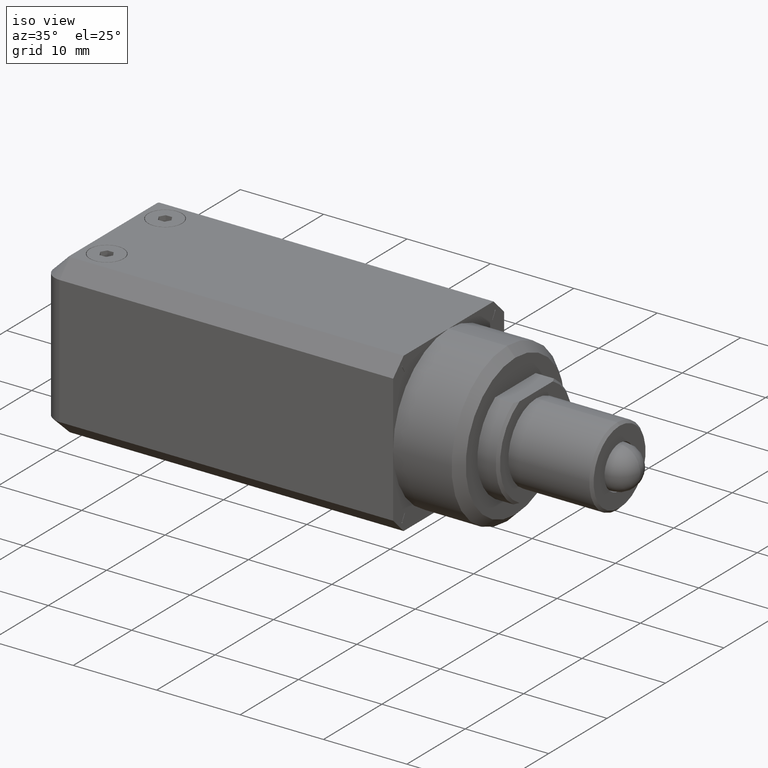
[diagram: clean part render]
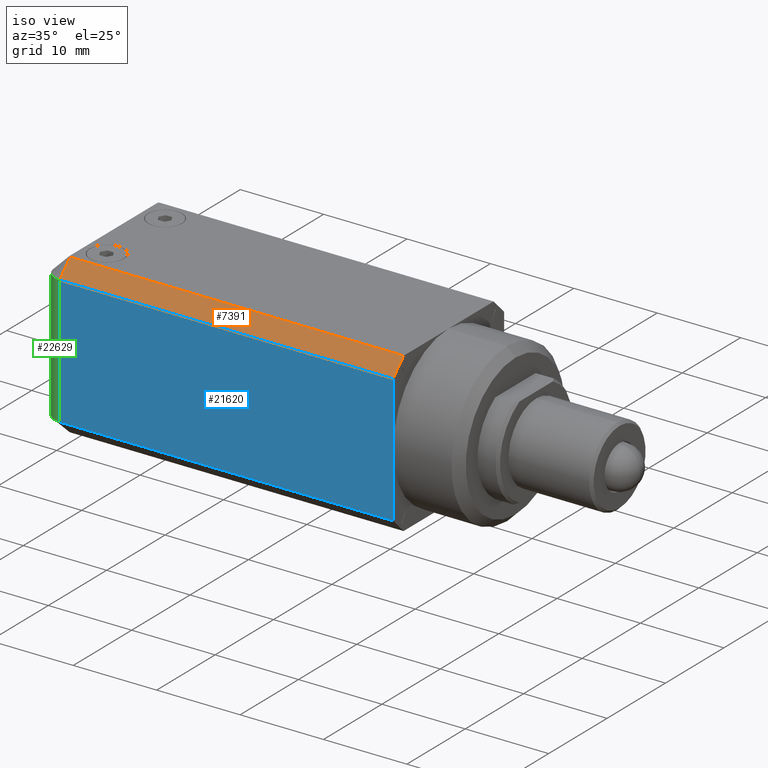
[diagram: same view with three faces highlighted in distinct colors, each labeled with its STEP entity id]
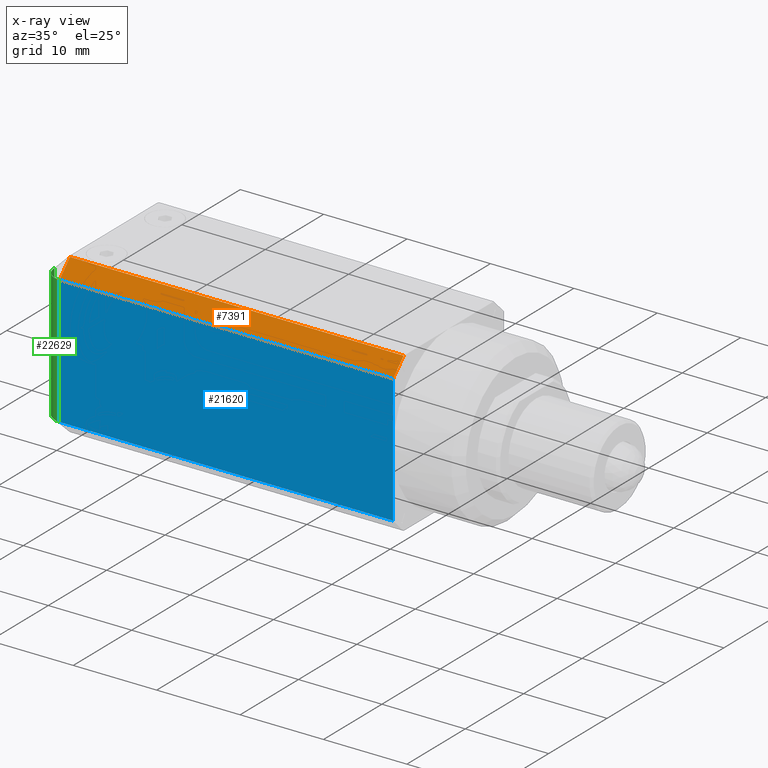
[diagram: x-ray of the same camera — body ghosted, the three highlighted faces saturated]
A machine part, iso view with three faces highlighted in distinct colors.
The next image is the same camera in x-ray (body ghosted, the three faces saturated) — at least one of them is partly hidden behind the body in this view.
Their STEP definitions:

[orange] entity #7391 — the highlighted planar face has unit normal (0, -0.7071, 0.7071).
#218 = EDGE_LOOP ( 'NONE', ( #21649, #7169, #18740, #7579 ) ) ;
#279 = CARTESIAN_POINT ( 'NONE',  ( -20.00000000000000000, -8.599999999999999645, 8.599999999999999645 ) ) ;
#2203 = VERTEX_POINT ( 'NONE', #9249 ) ;
#2452 = CARTESIAN_POINT ( 'NONE',  ( -42.00000000000000000, -7.699999999998635936, 9.500000000000000000 ) ) ;
#3154 = EDGE_CURVE ( 'NONE', #5618, #18971, #18400, .T. ) ;
#3297 = LINE ( 'NONE', #12619, #12254 ) ;
#4485 = LINE ( 'NONE', #2452, #17975 ) ;
#5618 = VERTEX_POINT ( 'NONE', #15149 ) ;
#5995 = VERTEX_POINT ( 'NONE', #21403 ) ;
#6428 = PLANE ( 'NONE',  #24578 ) ;
#7169 = ORIENTED_EDGE ( 'NONE', *, *, #12630, .T. ) ;
#7391 = ADVANCED_FACE ( 'NONE', ( #8185 ), #6428, .T. ) ;
#7459 = CARTESIAN_POINT ( 'NONE',  ( -40.00000000000001421, -8.599999999999999645, 8.599999999999999645 ) ) ;
#7579 = ORIENTED_EDGE ( 'NONE', *, *, #20201, .T. ) ;
#7939 = DIRECTION ( 'NONE',  ( 0.000000000000000000, -0.7071067811865475727, 0.7071067811865475727 ) ) ;
#8185 = FACE_OUTER_BOUND ( 'NONE', #218, .T. ) ;
#9249 = CARTESIAN_POINT ( 'NONE',  ( 3.469446951953614189E-15, -7.699999999998863309, 9.500000000000229150 ) ) ;
#9343 = DIRECTION ( 'NONE',  ( 0.000000000000000000, -0.7071067811865474617, -0.7071067811865474617 ) ) ;
#10170 = DIRECTION ( 'NONE',  ( 1.000000000000000000, 0.000000000000000000, -0.000000000000000000 ) ) ;
#10725 = DIRECTION ( 'NONE',  ( -0.000000000000000000, 0.7071067811865474617, 0.7071067811865474617 ) ) ;
#12254 = VECTOR ( 'NONE', #10725, 1000.000000000000114 ) ;
#12619 = CARTESIAN_POINT ( 'NONE',  ( 1.040834085586084257E-14, -8.599999999999999645, 8.599999999999999645 ) ) ;
#12630 = EDGE_CURVE ( 'NONE', #5995, #5618, #22813, .T. ) ;
#13909 = CARTESIAN_POINT ( 'NONE',  ( -20.00000000000000000, -9.499999999950626162, 7.700000000049374016 ) ) ;
#14467 = CARTESIAN_POINT ( 'NONE',  ( 9.251858538542970644E-15, -9.499999999967084108, 7.700000000049373128 ) ) ;
#15149 = CARTESIAN_POINT ( 'NONE',  ( -40.00000000000000711, -9.499999999940182960, 7.700000000063710104 ) ) ;
#17975 = VECTOR ( 'NONE', #10170, 1000.000000000000000 ) ;
#18400 = LINE ( 'NONE', #13909, #19079 ) ;
#18740 = ORIENTED_EDGE ( 'NONE', *, *, #3154, .T. ) ;
#18971 = VERTEX_POINT ( 'NONE', #14467 ) ;
#19079 = VECTOR ( 'NONE', #21692, 1000.000000000000000 ) ;
#20201 = EDGE_CURVE ( 'NONE', #18971, #2203, #3297, .T. ) ;
#21403 = CARTESIAN_POINT ( 'NONE',  ( -40.00000000000001421, -7.699999999998124345, 9.500000000001534772 ) ) ;
#21649 = ORIENTED_EDGE ( 'NONE', *, *, #24255, .F. ) ;
#21657 = DIRECTION ( 'NONE',  ( 0.000000000000000000, -0.7071067811865474617, -0.7071067811865474617 ) ) ;
#21692 = DIRECTION ( 'NONE',  ( 1.000000000000000000, 0.000000000000000000, 0.000000000000000000 ) ) ;
#22813 = LINE ( 'NONE', #7459, #24088 ) ;
#24088 = VECTOR ( 'NONE', #9343, 1000.000000000000114 ) ;
#24255 = EDGE_CURVE ( 'NONE', #5995, #2203, #4485, .T. ) ;
#24578 = AXIS2_PLACEMENT_3D ( 'NONE', #279, #7939, #21657 ) ;

[blue] entity #21620 — the highlighted planar face has unit normal (0, -1, 0).
#27 = EDGE_CURVE ( 'NONE', #5618, #15024, #772, .T. ) ;
#772 = LINE ( 'NONE', #19772, #11386 ) ;
#2651 = ORIENTED_EDGE ( 'NONE', *, *, #10877, .T. ) ;
#3154 = EDGE_CURVE ( 'NONE', #5618, #18971, #18400, .T. ) ;
#3605 = DIRECTION ( 'NONE',  ( -1.000000000000000000, -0.000000000000000000, -0.000000000000000000 ) ) ;
#3686 = CARTESIAN_POINT ( 'NONE',  ( 0.000000000000000000, -9.500000000000000000, -8.500000000000000000 ) ) ;
#4137 = VECTOR ( 'NONE', #3605, 1000.000000000000000 ) ;
#4731 = EDGE_CURVE ( 'NONE', #17478, #8803, #5572, .T. ) ;
#5572 = LINE ( 'NONE', #3686, #17268 ) ;
#5618 = VERTEX_POINT ( 'NONE', #15149 ) ;
#5938 = CARTESIAN_POINT ( 'NONE',  ( 0.000000000000000000, -9.500000000000000000, -8.500000000000000000 ) ) ;
#7349 = LINE ( 'NONE', #5938, #23374 ) ;
#7596 = CARTESIAN_POINT ( 'NONE',  ( 1.040834085586084257E-14, -9.500000000000000000, -7.700000000000001066 ) ) ;
#8803 = VERTEX_POINT ( 'NONE', #19459 ) ;
#8886 = EDGE_LOOP ( 'NONE', ( #23891, #19875, #20550, #2651, #20190 ) ) ;
#10877 = EDGE_CURVE ( 'NONE', #8803, #18971, #7349, .T. ) ;
#11065 = AXIS2_PLACEMENT_3D ( 'NONE', #12811, #18076, #22379 ) ;
#11248 = DIRECTION ( 'NONE',  ( -0.000000000000000000, 0.000000000000000000, 1.000000000000000000 ) ) ;
#11386 = VECTOR ( 'NONE', #14230, 1000.000000000000000 ) ;
#12052 = EDGE_CURVE ( 'NONE', #17478, #15024, #18556, .T. ) ;
#12811 = CARTESIAN_POINT ( 'NONE',  ( -42.00000000000000000, -9.500000000000000000, -8.500000000000000000 ) ) ;
#13159 = CARTESIAN_POINT ( 'NONE',  ( -20.00000000000000000, -9.500000000000000000, -7.700000000000000178 ) ) ;
#13909 = CARTESIAN_POINT ( 'NONE',  ( -20.00000000000000000, -9.499999999950626162, 7.700000000049374016 ) ) ;
#14230 = DIRECTION ( 'NONE',  ( 0.000000000000000000, -0.000000000000000000, -1.000000000000000000 ) ) ;
#14449 = PLANE ( 'NONE',  #11065 ) ;
#14467 = CARTESIAN_POINT ( 'NONE',  ( 9.251858538542970644E-15, -9.499999999967084108, 7.700000000049373128 ) ) ;
#15024 = VERTEX_POINT ( 'NONE', #18587 ) ;
#15149 = CARTESIAN_POINT ( 'NONE',  ( -40.00000000000000711, -9.499999999940182960, 7.700000000063710104 ) ) ;
#17268 = VECTOR ( 'NONE', #11248, 1000.000000000000000 ) ;
#17478 = VERTEX_POINT ( 'NONE', #7596 ) ;
#18076 = DIRECTION ( 'NONE',  ( 0.000000000000000000, -1.000000000000000000, 0.000000000000000000 ) ) ;
#18188 = FACE_OUTER_BOUND ( 'NONE', #8886, .T. ) ;
#18400 = LINE ( 'NONE', #13909, #19079 ) ;
#18556 = LINE ( 'NONE', #13159, #4137 ) ;
#18587 = CARTESIAN_POINT ( 'NONE',  ( -39.99999999665313766, -9.499999999979081622, -7.700000000050709836 ) ) ;
#18971 = VERTEX_POINT ( 'NONE', #14467 ) ;
#19079 = VECTOR ( 'NONE', #21692, 1000.000000000000000 ) ;
#19459 = CARTESIAN_POINT ( 'NONE',  ( 0.000000000000000000, -9.500000000000000000, 0.000000000000000000 ) ) ;
#19772 = CARTESIAN_POINT ( 'NONE',  ( -40.00000000000000000, -9.500000000000000000, -8.500000000000000000 ) ) ;
#19875 = ORIENTED_EDGE ( 'NONE', *, *, #12052, .F. ) ;
#20190 = ORIENTED_EDGE ( 'NONE', *, *, #3154, .F. ) ;
#20550 = ORIENTED_EDGE ( 'NONE', *, *, #4731, .T. ) ;
#21620 = ADVANCED_FACE ( 'NONE', ( #18188 ), #14449, .T. ) ;
#21692 = DIRECTION ( 'NONE',  ( 1.000000000000000000, 0.000000000000000000, 0.000000000000000000 ) ) ;
#22379 = DIRECTION ( 'NONE',  ( 0.000000000000000000, -0.000000000000000000, -1.000000000000000000 ) ) ;
#23224 = DIRECTION ( 'NONE',  ( -0.000000000000000000, 0.000000000000000000, 1.000000000000000000 ) ) ;
#23374 = VECTOR ( 'NONE', #23224, 1000.000000000000000 ) ;
#23891 = ORIENTED_EDGE ( 'NONE', *, *, #27, .T. ) ;

[green] entity #22629 — the highlighted cylindrical surface (edge-blend (fillet) strip) has radius 2 mm, axis along (0, 0, -1).
#27 = EDGE_CURVE ( 'NONE', #5618, #15024, #772, .T. ) ;
#318 = EDGE_CURVE ( 'NONE', #14041, #5618, #19780, .T. ) ;
#772 = LINE ( 'NONE', #19772, #11386 ) ;
#1839 = CARTESIAN_POINT ( 'NONE',  ( -40.00000000000000000, -7.500000000000000000, -7.700000000113504939 ) ) ;
#2384 = CIRCLE ( 'NONE', #4005, 1.999999999916325599 ) ;
#2398 = CARTESIAN_POINT ( 'NONE',  ( -41.99999999994324895, -7.499999998444752514, 7.700000000113504939 ) ) ;
#3934 = ORIENTED_EDGE ( 'NONE', *, *, #10513, .T. ) ;
#4005 = AXIS2_PLACEMENT_3D ( 'NONE', #1839, #9537, #17170 ) ;
#4468 = LINE ( 'NONE', #18009, #21715 ) ;
#4536 = CARTESIAN_POINT ( 'NONE',  ( -41.99999999995348077, -7.500000000000005329, -7.700000000069948669 ) ) ;
#4752 = DIRECTION ( 'NONE',  ( -1.000000000000000000, 0.000000000000000000, 0.000000000000000000 ) ) ;
#5544 = ORIENTED_EDGE ( 'NONE', *, *, #27, .F. ) ;
#5618 = VERTEX_POINT ( 'NONE', #15149 ) ;
#5660 = DIRECTION ( 'NONE',  ( -2.168404345276199184E-16, -0.000000000000000000, 1.000000000000000000 ) ) ;
#7200 = EDGE_CURVE ( 'NONE', #15024, #7386, #2384, .T. ) ;
#7386 = VERTEX_POINT ( 'NONE', #4536 ) ;
#7915 = EDGE_LOOP ( 'NONE', ( #5544, #24726, #3934, #18870 ) ) ;
#8534 = CARTESIAN_POINT ( 'NONE',  ( -40.00000000000000000, -7.500000000000000000, 30.66120000000000800 ) ) ;
#9537 = DIRECTION ( 'NONE',  ( -0.000000000000000000, -0.000000000000000000, -1.000000000000000000 ) ) ;
#10513 = EDGE_CURVE ( 'NONE', #14041, #7386, #4468, .T. ) ;
#11386 = VECTOR ( 'NONE', #14230, 1000.000000000000000 ) ;
#13348 = DIRECTION ( 'NONE',  ( -1.000000000000000000, 0.000000000000000000, 0.000000000000000000 ) ) ;
#14041 = VERTEX_POINT ( 'NONE', #2398 ) ;
#14230 = DIRECTION ( 'NONE',  ( 0.000000000000000000, -0.000000000000000000, -1.000000000000000000 ) ) ;
#14314 = CYLINDRICAL_SURFACE ( 'NONE', #17116, 2.000000000000001776 ) ;
#15024 = VERTEX_POINT ( 'NONE', #18587 ) ;
#15149 = CARTESIAN_POINT ( 'NONE',  ( -40.00000000000000711, -9.499999999940182960, 7.700000000063710104 ) ) ;
#16542 = DIRECTION ( 'NONE',  ( 0.000000000000000000, 0.000000000000000000, -1.000000000000000000 ) ) ;
#17116 = AXIS2_PLACEMENT_3D ( 'NONE', #8534, #16542, #4752 ) ;
#17170 = DIRECTION ( 'NONE',  ( -1.000000000000000000, -8.673617380246915433E-16, 0.000000000000000000 ) ) ;
#17350 = CARTESIAN_POINT ( 'NONE',  ( -40.00000000000000000, -7.500000000000000000, 7.700000000113504939 ) ) ;
#18009 = CARTESIAN_POINT ( 'NONE',  ( -42.00000000000000000, -7.500000000000000000, 30.66120000000000800 ) ) ;
#18587 = CARTESIAN_POINT ( 'NONE',  ( -39.99999999665313766, -9.499999999979081622, -7.700000000050709836 ) ) ;
#18870 = ORIENTED_EDGE ( 'NONE', *, *, #7200, .F. ) ;
#19772 = CARTESIAN_POINT ( 'NONE',  ( -40.00000000000000000, -9.500000000000000000, -8.500000000000000000 ) ) ;
#19780 = CIRCLE ( 'NONE', #20166, 1.999999999859482180 ) ;
#20166 = AXIS2_PLACEMENT_3D ( 'NONE', #17350, #5660, #13348 ) ;
#20458 = FACE_OUTER_BOUND ( 'NONE', #7915, .T. ) ;
#21715 = VECTOR ( 'NONE', #23488, 1000.000000000000000 ) ;
#22629 = ADVANCED_FACE ( 'NONE', ( #20458 ), #14314, .T. ) ;
#23488 = DIRECTION ( 'NONE',  ( 0.000000000000000000, 0.000000000000000000, -1.000000000000000000 ) ) ;
#24726 = ORIENTED_EDGE ( 'NONE', *, *, #318, .F. ) ;